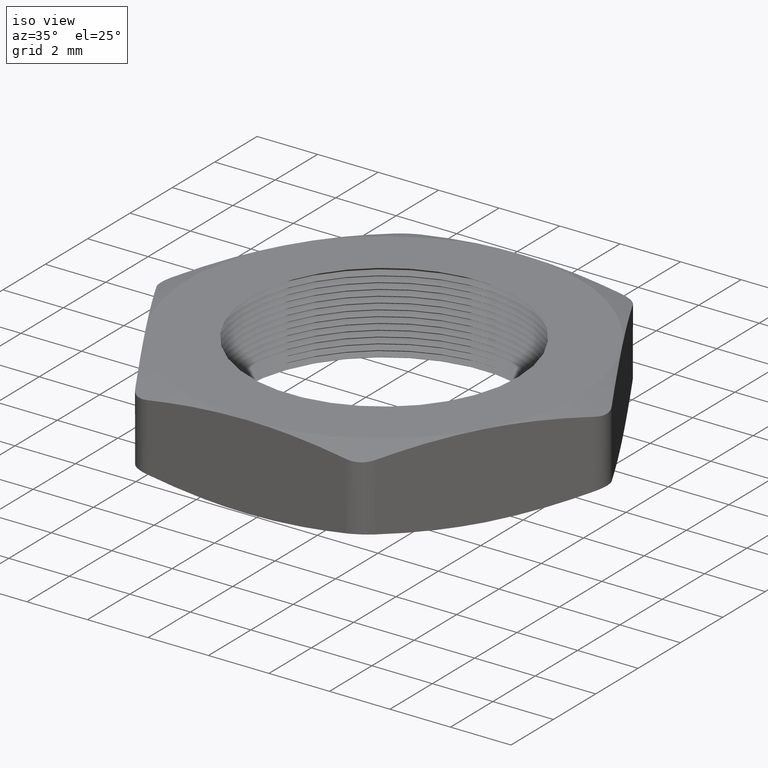
[diagram: clean part render]
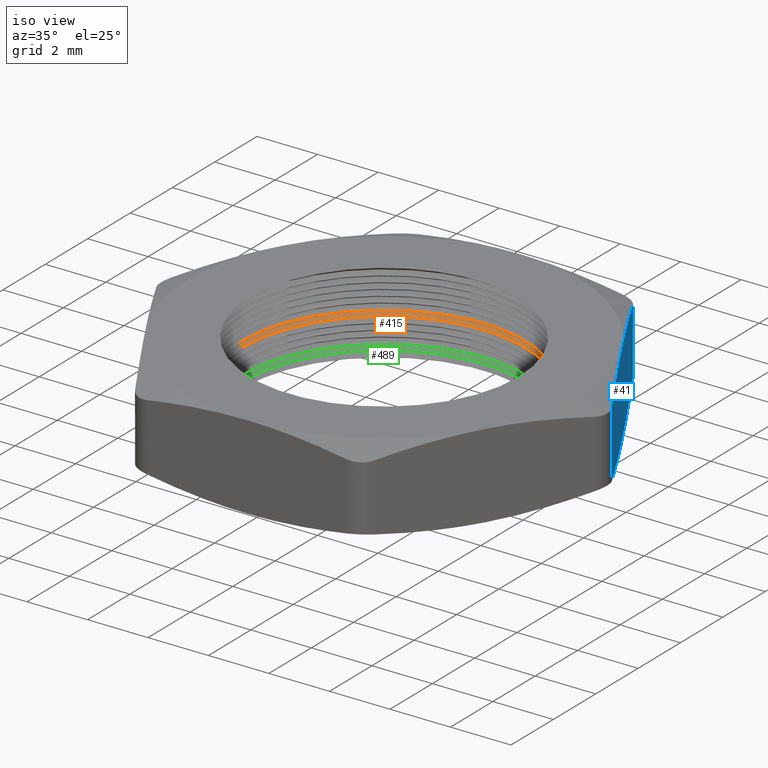
[diagram: same view with three faces highlighted in distinct colors, each labeled with its STEP entity id]
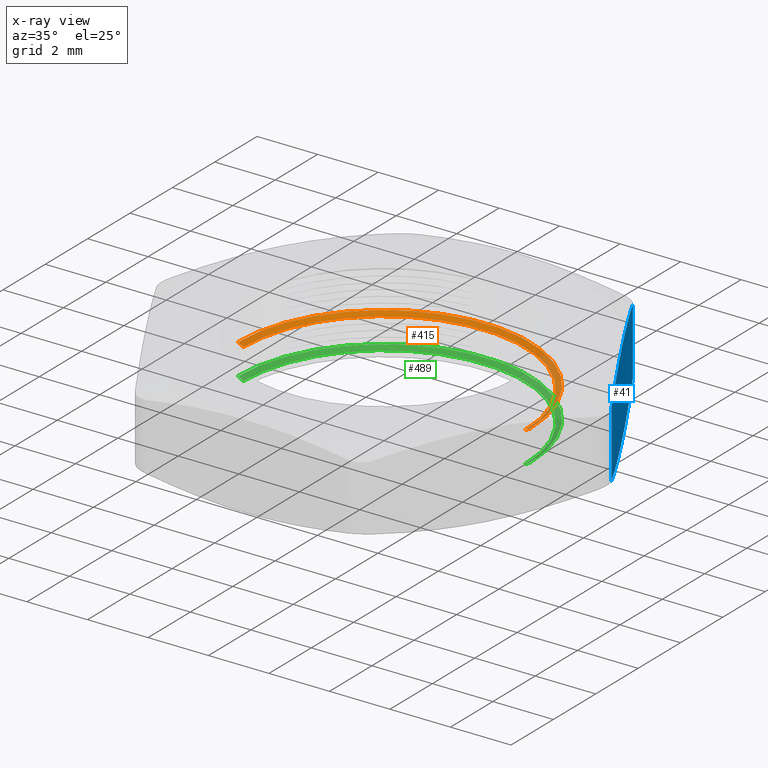
[diagram: x-ray of the same camera — body ghosted, the three highlighted faces saturated]
A machine part, iso view with three faces highlighted in distinct colors.
The next image is the same camera in x-ray (body ghosted, the three faces saturated) — at least one of them is partly hidden behind the body in this view.
Their STEP definitions:

[orange] entity #415 — the highlighted conical surface has half-angle 60 deg.
#414 = EDGE_CURVE ( 'NONE', #2078, #2081, #1262, .T. ) ;
#415 = ADVANCED_FACE ( 'NONE', ( #1258 ), #1257, .F. ) ;
#416 = EDGE_LOOP ( 'NONE', ( #417, #418, #420, #421 ) ) ;
#417 = ORIENTED_EDGE ( 'NONE', *, *, #2077, .F. ) ;
#418 = ORIENTED_EDGE ( 'NONE', *, *, #419, .T. ) ;
#419 = EDGE_CURVE ( 'NONE', #2090, #541, #1256, .T. ) ;
#420 = ORIENTED_EDGE ( 'NONE', *, *, #2083, .T. ) ;
#421 = ORIENTED_EDGE ( 'NONE', *, *, #414, .F. ) ;
#541 = VERTEX_POINT ( 'NONE', #1394 ) ;
#1204 = CARTESIAN_POINT ( 'NONE',  ( 0.0000000000000000000, 0.0000000000000000000, 0.05333974596215579300 ) ) ;
#1248 = DIRECTION ( 'NONE',  ( -1.000000000000000000, 0.0000000000000000000, 0.0000000000000000000 ) ) ;
#1249 = DIRECTION ( 'NONE',  ( 0.0000000000000000000, 0.0000000000000000000, -1.000000000000000000 ) ) ;
#1250 = CARTESIAN_POINT ( 'NONE',  ( 0.0000000000000000000, 0.0000000000000000000, 0.04933974596215571400 ) ) ;
#1251 = AXIS2_PLACEMENT_3D ( 'NONE', #1250, #1249, #1248 ) ;
#1252 = DIRECTION ( 'NONE',  ( 1.000000000000000000, 0.0000000000000000000, 0.0000000000000000000 ) ) ;
#1253 = DIRECTION ( 'NONE',  ( 0.0000000000000000000, 0.0000000000000000000, 1.000000000000000000 ) ) ;
#1254 = CARTESIAN_POINT ( 'NONE',  ( 0.0000000000000000000, 0.0000000000000000000, 0.04467949192431132400 ) ) ;
#1255 = AXIS2_PLACEMENT_3D ( 'NONE', #1254, #1253, #1252 ) ;
#1256 = CIRCLE ( 'NONE', #1251, 0.1830717967697244000 ) ;
#1257 = CONICAL_SURFACE ( 'NONE', #1255, 0.1749999999999999900, 1.047197551196593600 ) ;
#1258 = FACE_OUTER_BOUND ( 'NONE', #416, .T. ) ;
#1259 = DIRECTION ( 'NONE',  ( -1.000000000000000000, 0.0000000000000000000, 0.0000000000000000000 ) ) ;
#1260 = DIRECTION ( 'NONE',  ( 0.0000000000000000000, 0.0000000000000000000, -1.000000000000000000 ) ) ;
#1261 = AXIS2_PLACEMENT_3D ( 'NONE', #1204, #1260, #1259 ) ;
#1262 = CIRCLE ( 'NONE', #1261, 0.1899999999999999700 ) ;
#1394 = CARTESIAN_POINT ( 'NONE',  ( 0.1830717967697244000, 0.0000000000000000000, 0.04933974596215571400 ) ) ;
#1445 = LINE ( 'NONE', #1509, #1508 ) ;
#1446 = CARTESIAN_POINT ( 'NONE',  ( 0.1899999999999999700, 2.326828918379970900E-017, 0.05333974596215579300 ) ) ;
#1452 = CARTESIAN_POINT ( 'NONE',  ( -0.1899999999999999700, 0.0000000000000000000, 0.05333974596215579300 ) ) ;
#1453 = DIRECTION ( 'NONE',  ( -0.8660254037844366000, 1.060575238724904300E-016, 0.5000000000000035500 ) ) ;
#1454 = VECTOR ( 'NONE', #1453, 39.37007874015748100 ) ;
#1455 = CARTESIAN_POINT ( 'NONE',  ( -0.1749999999999999900, 2.143131898507868000E-017, 0.04467949192431132400 ) ) ;
#1456 = LINE ( 'NONE', #1455, #1454 ) ;
#1498 = CARTESIAN_POINT ( 'NONE',  ( -0.1830717967697244000, 2.284405908830974300E-017, 0.04933974596215571400 ) ) ;
#1507 = DIRECTION ( 'NONE',  ( 0.8660254037844366000, 0.0000000000000000000, 0.5000000000000035500 ) ) ;
#1508 = VECTOR ( 'NONE', #1507, 39.37007874015748100 ) ;
#1509 = CARTESIAN_POINT ( 'NONE',  ( 0.1749999999999999900, 0.0000000000000000000, 0.04467949192431132400 ) ) ;
#2077 = EDGE_CURVE ( 'NONE', #2090, #2078, #1456, .T. ) ;
#2078 = VERTEX_POINT ( 'NONE', #1452 ) ;
#2081 = VERTEX_POINT ( 'NONE', #1446 ) ;
#2083 = EDGE_CURVE ( 'NONE', #541, #2081, #1445, .T. ) ;
#2090 = VERTEX_POINT ( 'NONE', #1498 ) ;

[blue] entity #41 — the highlighted planar face has unit normal (-0.866, -0.5, 0).
#29 = VERTEX_POINT ( 'NONE', #589 ) ;
#30 = VERTEX_POINT ( 'NONE', #585 ) ;
#31 = ORIENTED_EDGE ( 'NONE', *, *, #83, .F. ) ;
#37 = EDGE_CURVE ( 'NONE', #29, #30, #582, .T. ) ;
#38 = ORIENTED_EDGE ( 'NONE', *, *, #37, .T. ) ;
#39 = VERTEX_POINT ( 'NONE', #578 ) ;
#40 = EDGE_LOOP ( 'NONE', ( #45, #38, #31, #84, #85, #88 ) ) ;
#41 = ADVANCED_FACE ( 'NONE', ( #577 ), #576, .F. ) ;
#42 = EDGE_CURVE ( 'NONE', #29, #39, #571, .T. ) ;
#45 = ORIENTED_EDGE ( 'NONE', *, *, #42, .F. ) ;
#83 = EDGE_CURVE ( 'NONE', #2259, #30, #704, .T. ) ;
#84 = ORIENTED_EDGE ( 'NONE', *, *, #2238, .F. ) ;
#85 = ORIENTED_EDGE ( 'NONE', *, *, #86, .T. ) ;
#86 = EDGE_CURVE ( 'NONE', #2236, #87, #703, .T. ) ;
#87 = VERTEX_POINT ( 'NONE', #695 ) ;
#88 = ORIENTED_EDGE ( 'NONE', *, *, #89, .F. ) ;
#89 = EDGE_CURVE ( 'NONE', #39, #87, #694, .T. ) ;
#569 = CARTESIAN_POINT ( 'NONE',  ( 0.1775352077758101100, 0.2025000000000000700, 0.004195273691761853800 ) ) ;
#570 = CARTESIAN_POINT ( 'NONE',  ( 0.1558845726811991000, 0.2400000000000000700, 0.01134923264675023100 ) ) ;
#571 = B_SPLINE_CURVE_WITH_KNOTS ( 'NONE', 3,
 ( #570, #569, #626, #625 ),
 .UNSPECIFIED., .F., .F.,
 ( 4, 4 ),
 ( 2.309401076752023300E-007, 0.003299787728526387400 ),
 .UNSPECIFIED. ) ;
#572 = DIRECTION ( 'NONE',  ( 0.4999999999999996100, -0.8660254037844388200, 0.0000000000000000000 ) ) ;
#573 = DIRECTION ( 'NONE',  ( -0.8660254037844388200, -0.4999999999999996100, 0.0000000000000000000 ) ) ;
#574 = CARTESIAN_POINT ( 'NONE',  ( 0.2944486372867092200, 5.460670482723651300E-017, 0.1100000000000000000 ) ) ;
#575 = AXIS2_PLACEMENT_3D ( 'NONE', #574, #573, #572 ) ;
#576 = PLANE ( 'NONE',  #575 ) ;
#577 = FACE_OUTER_BOUND ( 'NONE', #40, .T. ) ;
#578 = CARTESIAN_POINT ( 'NONE',  ( 0.2208364779650319700, 0.1275000000000000000, 0.0000000000000000000 ) ) ;
#579 = DIRECTION ( 'NONE',  ( 0.0000000000000000000, 0.0000000000000000000, 1.000000000000000000 ) ) ;
#580 = VECTOR ( 'NONE', #579, 39.37007874015748100 ) ;
#581 = CARTESIAN_POINT ( 'NONE',  ( 0.1558845726811991500, 0.2400000000000000700, 0.1100000000000000000 ) ) ;
#582 = LINE ( 'NONE', #581, #580 ) ;
#585 = CARTESIAN_POINT ( 'NONE',  ( 0.1558845726811991500, 0.2400000000000000700, 0.09865076735324976300 ) ) ;
#589 = CARTESIAN_POINT ( 'NONE',  ( 0.1558845726811991000, 0.2400000000000000700, 0.01134923264675023100 ) ) ;
#625 = CARTESIAN_POINT ( 'NONE',  ( 0.2208364779650319700, 0.1275000000000000000, 0.0000000000000000000 ) ) ;
#626 = CARTESIAN_POINT ( 'NONE',  ( 0.1991858428704210400, 0.1650000000000000600, 2.397930209817494700E-017 ) ) ;
#689 = CARTESIAN_POINT ( 'NONE',  ( 0.2857883832488648500, 0.01500000000000004500, 0.01134923264675020600 ) ) ;
#690 = CARTESIAN_POINT ( 'NONE',  ( 0.2641377481542538900, 0.05250000000000004700, 0.004195273691761823400 ) ) ;
#691 = CARTESIAN_POINT ( 'NONE',  ( 0.2424871130596429300, 0.09000000000000005200, 1.952284277163744900E-017 ) ) ;
#692 = CARTESIAN_POINT ( 'NONE',  ( 0.2208364779650319700, 0.1275000000000000000, 0.0000000000000000000 ) ) ;
#694 = B_SPLINE_CURVE_WITH_KNOTS ( 'NONE', 3,
 ( #692, #691, #690, #689 ),
 .UNSPECIFIED., .F., .F.,
 ( 4, 4 ),
 ( 0.003299787728526387400, 0.006599344516945096100 ),
 .UNSPECIFIED. ) ;
#695 = CARTESIAN_POINT ( 'NONE',  ( 0.2857883832488648500, 0.01500000000000004500, 0.01134923264675020600 ) ) ;
#696 = DIRECTION ( 'NONE',  ( 0.0000000000000000000, 0.0000000000000000000, -1.000000000000000000 ) ) ;
#697 = VECTOR ( 'NONE', #696, 39.37007874015748100 ) ;
#698 = CARTESIAN_POINT ( 'NONE',  ( 0.2857883832488648500, 0.01500000000000004500, 0.1100000000000000000 ) ) ;
#699 = CARTESIAN_POINT ( 'NONE',  ( 0.1558845726811991500, 0.2400000000000000700, 0.09865076735324976300 ) ) ;
#700 = CARTESIAN_POINT ( 'NONE',  ( 0.1775352077758101100, 0.2025000000000000700, 0.1058047263082381500 ) ) ;
#701 = CARTESIAN_POINT ( 'NONE',  ( 0.1991858428704210400, 0.1650000000000000100, 0.1099999999999999900 ) ) ;
#702 = CARTESIAN_POINT ( 'NONE',  ( 0.2208364779650320000, 0.1275000000000000000, 0.1100000000000000000 ) ) ;
#703 = LINE ( 'NONE', #698, #697 ) ;
#704 = B_SPLINE_CURVE_WITH_KNOTS ( 'NONE', 3,
 ( #702, #701, #700, #699 ),
 .UNSPECIFIED., .F., .F.,
 ( 4, 4 ),
 ( 0.003299787728526385300, 0.006599344516945097900 ),
 .UNSPECIFIED. ) ;
#1769 = CARTESIAN_POINT ( 'NONE',  ( 0.2208364779650320000, 0.1275000000000000000, 0.1100000000000000000 ) ) ;
#1770 = CARTESIAN_POINT ( 'NONE',  ( 0.2424871130596429300, 0.09000000000000002400, 0.1099999999999999900 ) ) ;
#1771 = CARTESIAN_POINT ( 'NONE',  ( 0.2641377481542538900, 0.05250000000000002600, 0.1058047263082381900 ) ) ;
#1772 = CARTESIAN_POINT ( 'NONE',  ( 0.2857883832488648500, 0.01500000000000004500, 0.09865076735324980500 ) ) ;
#1774 = B_SPLINE_CURVE_WITH_KNOTS ( 'NONE', 3,
 ( #1772, #1771, #1770, #1769 ),
 .UNSPECIFIED., .F., .F.,
 ( 4, 4 ),
 ( 2.309401076760115900E-007, 0.003299787728526385300 ),
 .UNSPECIFIED. ) ;
#1780 = CARTESIAN_POINT ( 'NONE',  ( 0.2857883832488648500, 0.01500000000000004500, 0.09865076735324980500 ) ) ;
#1831 = CARTESIAN_POINT ( 'NONE',  ( 0.2208364779650320000, 0.1275000000000000000, 0.1100000000000000000 ) ) ;
#2236 = VERTEX_POINT ( 'NONE', #1780 ) ;
#2238 = EDGE_CURVE ( 'NONE', #2236, #2259, #1774, .T. ) ;
#2259 = VERTEX_POINT ( 'NONE', #1831 ) ;

[green] entity #489 — the highlighted conical surface has half-angle 60 deg.
#97 = VERTEX_POINT ( 'NONE', #728 ) ;
#98 = VERTEX_POINT ( 'NONE', #727 ) ;
#142 = VERTEX_POINT ( 'NONE', #769 ) ;
#144 = EDGE_CURVE ( 'NONE', #98, #142, #830, .T. ) ;
#147 = VERTEX_POINT ( 'NONE', #821 ) ;
#149 = EDGE_CURVE ( 'NONE', #97, #147, #820, .T. ) ;
#489 = ADVANCED_FACE ( 'NONE', ( #1390 ), #1389, .F. ) ;
#490 = EDGE_LOOP ( 'NONE', ( #491, #492, #494, #495 ) ) ;
#491 = ORIENTED_EDGE ( 'NONE', *, *, #144, .F. ) ;
#492 = ORIENTED_EDGE ( 'NONE', *, *, #493, .T. ) ;
#493 = EDGE_CURVE ( 'NONE', #98, #97, #1383, .T. ) ;
#494 = ORIENTED_EDGE ( 'NONE', *, *, #149, .T. ) ;
#495 = ORIENTED_EDGE ( 'NONE', *, *, #512, .F. ) ;
#512 = EDGE_CURVE ( 'NONE', #142, #147, #1413, .T. ) ;
#727 = CARTESIAN_POINT ( 'NONE',  ( -0.1830717967697244000, 2.284405908830974300E-017, 0.009339745962155716200 ) ) ;
#728 = CARTESIAN_POINT ( 'NONE',  ( 0.1830717967697244000, 0.0000000000000000000, 0.009339745962155716200 ) ) ;
#769 = CARTESIAN_POINT ( 'NONE',  ( -0.1899999999999999700, 0.0000000000000000000, 0.01333974596215579600 ) ) ;
#817 = DIRECTION ( 'NONE',  ( 0.8660254037844366000, 0.0000000000000000000, 0.5000000000000035500 ) ) ;
#818 = VECTOR ( 'NONE', #817, 39.37007874015748100 ) ;
#819 = CARTESIAN_POINT ( 'NONE',  ( 0.1749999999999999900, 0.0000000000000000000, 0.004679491924311322000 ) ) ;
#820 = LINE ( 'NONE', #819, #818 ) ;
#821 = CARTESIAN_POINT ( 'NONE',  ( 0.1899999999999999700, 2.326828918379970900E-017, 0.01333974596215579600 ) ) ;
#827 = DIRECTION ( 'NONE',  ( -0.8660254037844366000, 1.060575238724904300E-016, 0.5000000000000035500 ) ) ;
#828 = VECTOR ( 'NONE', #827, 39.37007874015748100 ) ;
#829 = CARTESIAN_POINT ( 'NONE',  ( -0.1749999999999999900, 2.143131898507868000E-017, 0.004679491924311322000 ) ) ;
#830 = LINE ( 'NONE', #829, #828 ) ;
#1380 = DIRECTION ( 'NONE',  ( -1.000000000000000000, 0.0000000000000000000, 0.0000000000000000000 ) ) ;
#1381 = DIRECTION ( 'NONE',  ( 0.0000000000000000000, 0.0000000000000000000, -1.000000000000000000 ) ) ;
#1382 = AXIS2_PLACEMENT_3D ( 'NONE', #1387, #1381, #1380 ) ;
#1383 = CIRCLE ( 'NONE', #1382, 0.1830717967697244000 ) ;
#1384 = DIRECTION ( 'NONE',  ( 1.000000000000000000, 0.0000000000000000000, 0.0000000000000000000 ) ) ;
#1385 = DIRECTION ( 'NONE',  ( 0.0000000000000000000, 0.0000000000000000000, 1.000000000000000000 ) ) ;
#1386 = AXIS2_PLACEMENT_3D ( 'NONE', #1388, #1385, #1384 ) ;
#1387 = CARTESIAN_POINT ( 'NONE',  ( 0.0000000000000000000, 0.0000000000000000000, 0.009339745962155716200 ) ) ;
#1388 = CARTESIAN_POINT ( 'NONE',  ( 0.0000000000000000000, 0.0000000000000000000, 0.004679491924311322000 ) ) ;
#1389 = CONICAL_SURFACE ( 'NONE', #1386, 0.1749999999999999900, 1.047197551196593600 ) ;
#1390 = FACE_OUTER_BOUND ( 'NONE', #490, .T. ) ;
#1410 = DIRECTION ( 'NONE',  ( -1.000000000000000000, 0.0000000000000000000, 0.0000000000000000000 ) ) ;
#1411 = DIRECTION ( 'NONE',  ( 0.0000000000000000000, 0.0000000000000000000, -1.000000000000000000 ) ) ;
#1412 = AXIS2_PLACEMENT_3D ( 'NONE', #1418, #1411, #1410 ) ;
#1413 = CIRCLE ( 'NONE', #1412, 0.1899999999999999700 ) ;
#1418 = CARTESIAN_POINT ( 'NONE',  ( 0.0000000000000000000, 0.0000000000000000000, 0.01333974596215579600 ) ) ;